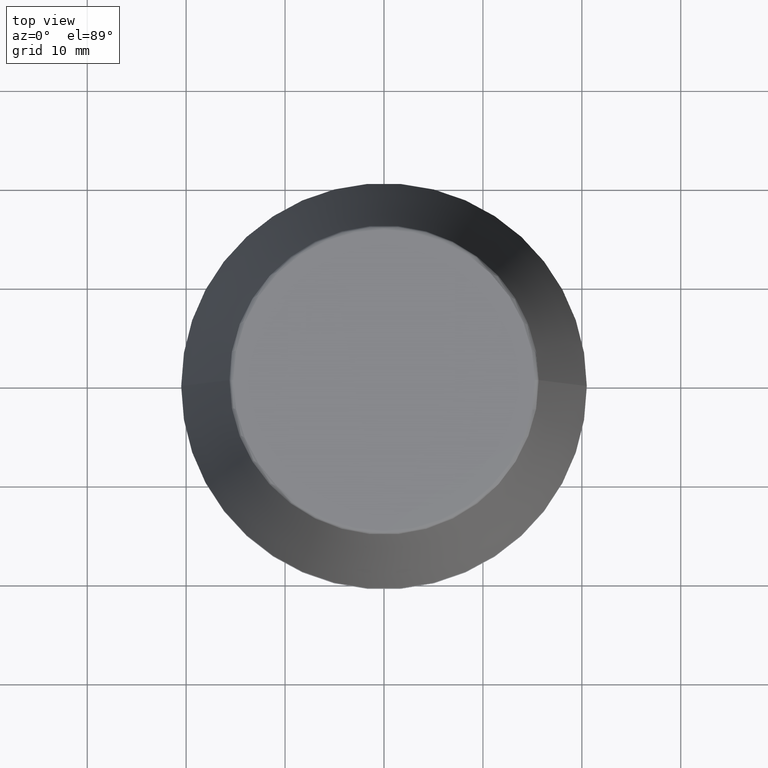
[diagram: clean part render]
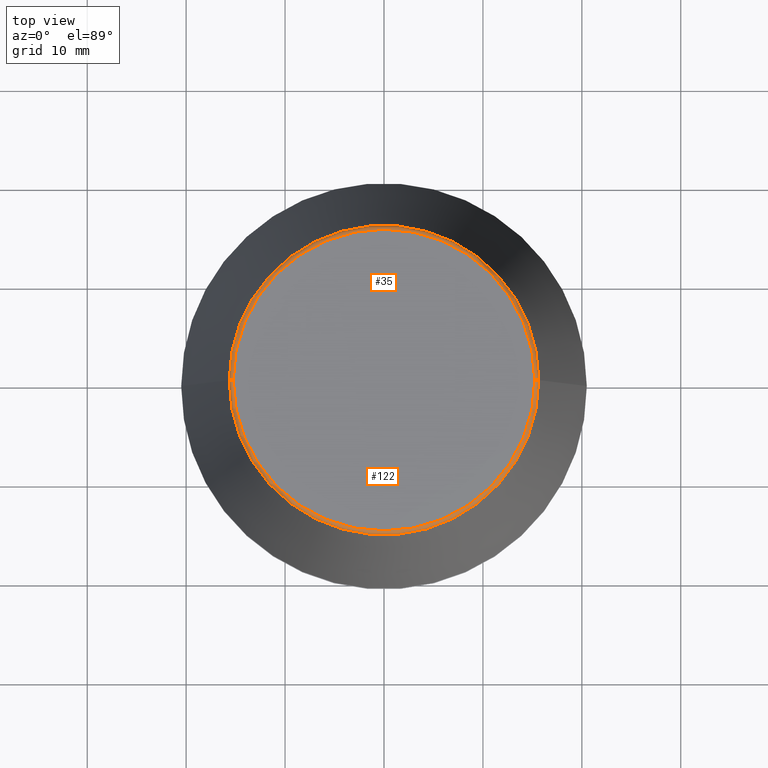
[diagram: same view with one multi-face feature highlighted, each face labeled with its STEP entity id]
A machine part, top view. The highlighted faces form ONE feature: a constant-radius fillet chain: 2 tangent blend faces with common blend radius 0.4 mm. The faces share edges in the B-rep.
Their STEP definitions:
[1] entity #122 (Torus):
#21 = CARTESIAN_POINT ( 'NONE',  ( -15.64384277279740400, 0.0000000000000000000, 45.65566924038402900 ) ) ;
#26 = DIRECTION ( 'NONE',  ( 1.000000000000000000, 0.0000000000000000000, 0.0000000000000000000 ) ) ;
#39 = EDGE_CURVE ( 'NONE', #362, #374, #368, .T. ) ;
#44 = CIRCLE ( 'NONE', #387, 15.64384277279740400 ) ;
#61 = EDGE_CURVE ( 'NONE', #362, #347, #44, .T. ) ;
#66 = ORIENTED_EDGE ( 'NONE', *, *, #99, .T. ) ;
#72 = DIRECTION ( 'NONE',  ( -0.0000000000000000000, -0.0000000000000000000, 1.000000000000000000 ) ) ;
#74 = AXIS2_PLACEMENT_3D ( 'NONE', #248, #80, #275 ) ;
#80 = DIRECTION ( 'NONE',  ( 0.0000000000000000000, -1.000000000000000000, 0.0000000000000000000 ) ) ;
#89 = DIRECTION ( 'NONE',  ( -0.0000000000000000000, -0.0000000000000000000, 1.000000000000000000 ) ) ;
#96 = CARTESIAN_POINT ( 'NONE',  ( -15.24773554530077600, 1.867309052979791600E-015, 45.60000000000000100 ) ) ;
#99 = EDGE_CURVE ( 'NONE', #347, #206, #313, .T. ) ;
#116 = DIRECTION ( 'NONE',  ( -0.0000000000000000000, -0.0000000000000000000, 1.000000000000000000 ) ) ;
#122 = ADVANCED_FACE ( 'NONE', ( #304 ), #153, .T. ) ;
#123 = DIRECTION ( 'NONE',  ( -1.000000000000000000, 1.224646799147353900E-016, 0.0000000000000000000 ) ) ;
#146 = ORIENTED_EDGE ( 'NONE', *, *, #354, .F. ) ;
#147 = ORIENTED_EDGE ( 'NONE', *, *, #39, .F. ) ;
#148 = EDGE_LOOP ( 'NONE', ( #147, #322, #66, #146 ) ) ;
#153 = TOROIDAL_SURFACE ( 'NONE', #233, 15.24773554530077600, 0.3999999999999991900 ) ;
#184 = CARTESIAN_POINT ( 'NONE',  ( -15.24773554530077600, 1.891563625393435400E-015, 46.00000000000000000 ) ) ;
#193 = CARTESIAN_POINT ( 'NONE',  ( 15.64384277279740400, 2.213191991290356800E-015, 45.65566924038402900 ) ) ;
#206 = VERTEX_POINT ( 'NONE', #309 ) ;
#233 = AXIS2_PLACEMENT_3D ( 'NONE', #317, #89, #26 ) ;
#241 = CARTESIAN_POINT ( 'NONE',  ( 0.0000000000000000000, 0.0000000000000000000, 45.65566924038402900 ) ) ;
#246 = AXIS2_PLACEMENT_3D ( 'NONE', #283, #116, #315 ) ;
#248 = CARTESIAN_POINT ( 'NONE',  ( 15.24773554530077600, 0.0000000000000000000, 45.60000000000000100 ) ) ;
#270 = DIRECTION ( 'NONE',  ( 1.000000000000000000, 0.0000000000000000000, 0.0000000000000000000 ) ) ;
#275 = DIRECTION ( 'NONE',  ( 0.0000000000000000000, 0.0000000000000000000, -1.000000000000000000 ) ) ;
#283 = CARTESIAN_POINT ( 'NONE',  ( 0.0000000000000000000, 0.0000000000000000000, 46.00000000000000000 ) ) ;
#295 = DIRECTION ( 'NONE',  ( 1.224646799147353200E-016, 1.000000000000000000, 0.0000000000000000000 ) ) ;
#304 = FACE_OUTER_BOUND ( 'NONE', #148, .T. ) ;
#309 = CARTESIAN_POINT ( 'NONE',  ( 15.24773554530077600, 0.0000000000000000000, 46.00000000000000000 ) ) ;
#313 = CIRCLE ( 'NONE', #74, 0.3999999999999975800 ) ;
#315 = DIRECTION ( 'NONE',  ( 1.000000000000000000, 0.0000000000000000000, 0.0000000000000000000 ) ) ;
#317 = CARTESIAN_POINT ( 'NONE',  ( 0.0000000000000000000, 0.0000000000000000000, 45.60000000000000100 ) ) ;
#322 = ORIENTED_EDGE ( 'NONE', *, *, #61, .T. ) ;
#325 = CIRCLE ( 'NONE', #246, 15.24773554530077600 ) ;
#347 = VERTEX_POINT ( 'NONE', #193 ) ;
#354 = EDGE_CURVE ( 'NONE', #374, #206, #325, .T. ) ;
#362 = VERTEX_POINT ( 'NONE', #21 ) ;
#368 = CIRCLE ( 'NONE', #384, 0.3999999999999975800 ) ;
#374 = VERTEX_POINT ( 'NONE', #184 ) ;
#384 = AXIS2_PLACEMENT_3D ( 'NONE', #96, #295, #123 ) ;
#387 = AXIS2_PLACEMENT_3D ( 'NONE', #241, #72, #270 ) ;
[2] entity #35 (Torus):
#15 = EDGE_CURVE ( 'NONE', #206, #374, #55, .T. ) ;
#21 = CARTESIAN_POINT ( 'NONE',  ( -15.64384277279740400, 0.0000000000000000000, 45.65566924038402900 ) ) ;
#23 = DIRECTION ( 'NONE',  ( 1.000000000000000000, 0.0000000000000000000, 0.0000000000000000000 ) ) ;
#28 = AXIS2_PLACEMENT_3D ( 'NONE', #231, #143, #23 ) ;
#35 = ADVANCED_FACE ( 'NONE', ( #130 ), #207, .T. ) ;
#39 = EDGE_CURVE ( 'NONE', #362, #374, #368, .T. ) ;
#55 = CIRCLE ( 'NONE', #135, 15.24773554530077600 ) ;
#58 = CARTESIAN_POINT ( 'NONE',  ( 0.0000000000000000000, 0.0000000000000000000, 46.00000000000000000 ) ) ;
#74 = AXIS2_PLACEMENT_3D ( 'NONE', #248, #80, #275 ) ;
#78 = CIRCLE ( 'NONE', #297, 15.64384277279740400 ) ;
#80 = DIRECTION ( 'NONE',  ( 0.0000000000000000000, -1.000000000000000000, 0.0000000000000000000 ) ) ;
#92 = ORIENTED_EDGE ( 'NONE', *, *, #39, .T. ) ;
#96 = CARTESIAN_POINT ( 'NONE',  ( -15.24773554530077600, 1.867309052979791600E-015, 45.60000000000000100 ) ) ;
#99 = EDGE_CURVE ( 'NONE', #347, #206, #313, .T. ) ;
#112 = EDGE_CURVE ( 'NONE', #347, #362, #78, .T. ) ;
#123 = DIRECTION ( 'NONE',  ( -1.000000000000000000, 1.224646799147353900E-016, 0.0000000000000000000 ) ) ;
#130 = FACE_OUTER_BOUND ( 'NONE', #376, .T. ) ;
#135 = AXIS2_PLACEMENT_3D ( 'NONE', #58, #271, #314 ) ;
#143 = DIRECTION ( 'NONE',  ( -0.0000000000000000000, -0.0000000000000000000, 1.000000000000000000 ) ) ;
#150 = ORIENTED_EDGE ( 'NONE', *, *, #15, .F. ) ;
#173 = ORIENTED_EDGE ( 'NONE', *, *, #112, .T. ) ;
#176 = CARTESIAN_POINT ( 'NONE',  ( 0.0000000000000000000, 0.0000000000000000000, 45.65566924038402900 ) ) ;
#184 = CARTESIAN_POINT ( 'NONE',  ( -15.24773554530077600, 1.891563625393435400E-015, 46.00000000000000000 ) ) ;
#193 = CARTESIAN_POINT ( 'NONE',  ( 15.64384277279740400, 2.213191991290356800E-015, 45.65566924038402900 ) ) ;
#202 = DIRECTION ( 'NONE',  ( 1.000000000000000000, 0.0000000000000000000, 0.0000000000000000000 ) ) ;
#206 = VERTEX_POINT ( 'NONE', #309 ) ;
#207 = TOROIDAL_SURFACE ( 'NONE', #28, 15.24773554530077600, 0.3999999999999991900 ) ;
#231 = CARTESIAN_POINT ( 'NONE',  ( 0.0000000000000000000, 0.0000000000000000000, 45.60000000000000100 ) ) ;
#248 = CARTESIAN_POINT ( 'NONE',  ( 15.24773554530077600, 0.0000000000000000000, 45.60000000000000100 ) ) ;
#263 = ORIENTED_EDGE ( 'NONE', *, *, #99, .F. ) ;
#271 = DIRECTION ( 'NONE',  ( -0.0000000000000000000, -0.0000000000000000000, 1.000000000000000000 ) ) ;
#275 = DIRECTION ( 'NONE',  ( 0.0000000000000000000, 0.0000000000000000000, -1.000000000000000000 ) ) ;
#295 = DIRECTION ( 'NONE',  ( 1.224646799147353200E-016, 1.000000000000000000, 0.0000000000000000000 ) ) ;
#297 = AXIS2_PLACEMENT_3D ( 'NONE', #176, #385, #202 ) ;
#309 = CARTESIAN_POINT ( 'NONE',  ( 15.24773554530077600, 0.0000000000000000000, 46.00000000000000000 ) ) ;
#313 = CIRCLE ( 'NONE', #74, 0.3999999999999975800 ) ;
#314 = DIRECTION ( 'NONE',  ( 1.000000000000000000, 0.0000000000000000000, 0.0000000000000000000 ) ) ;
#347 = VERTEX_POINT ( 'NONE', #193 ) ;
#362 = VERTEX_POINT ( 'NONE', #21 ) ;
#368 = CIRCLE ( 'NONE', #384, 0.3999999999999975800 ) ;
#374 = VERTEX_POINT ( 'NONE', #184 ) ;
#376 = EDGE_LOOP ( 'NONE', ( #173, #92, #150, #263 ) ) ;
#384 = AXIS2_PLACEMENT_3D ( 'NONE', #96, #295, #123 ) ;
#385 = DIRECTION ( 'NONE',  ( -0.0000000000000000000, -0.0000000000000000000, 1.000000000000000000 ) ) ;